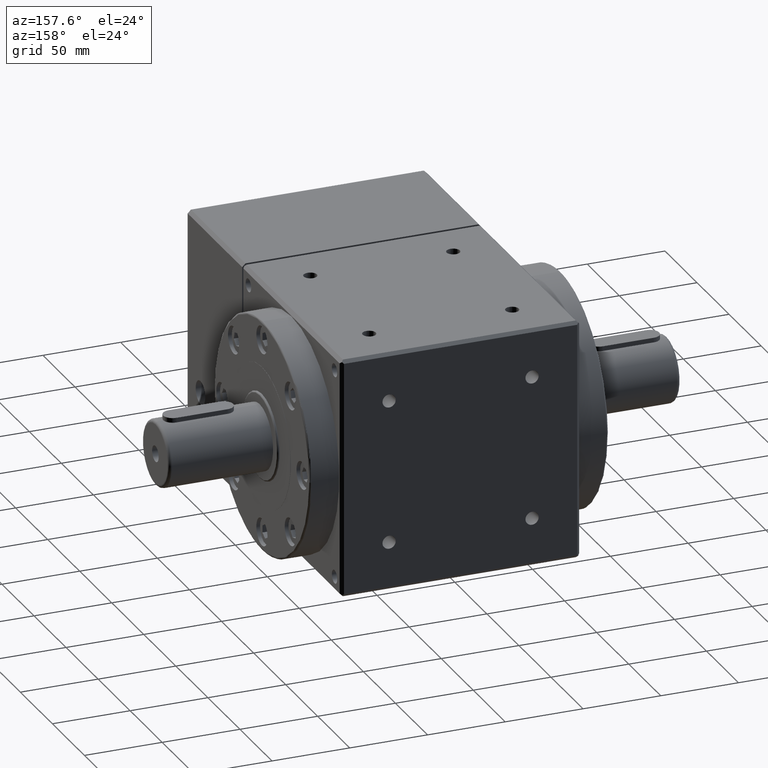
[diagram: clean part render]
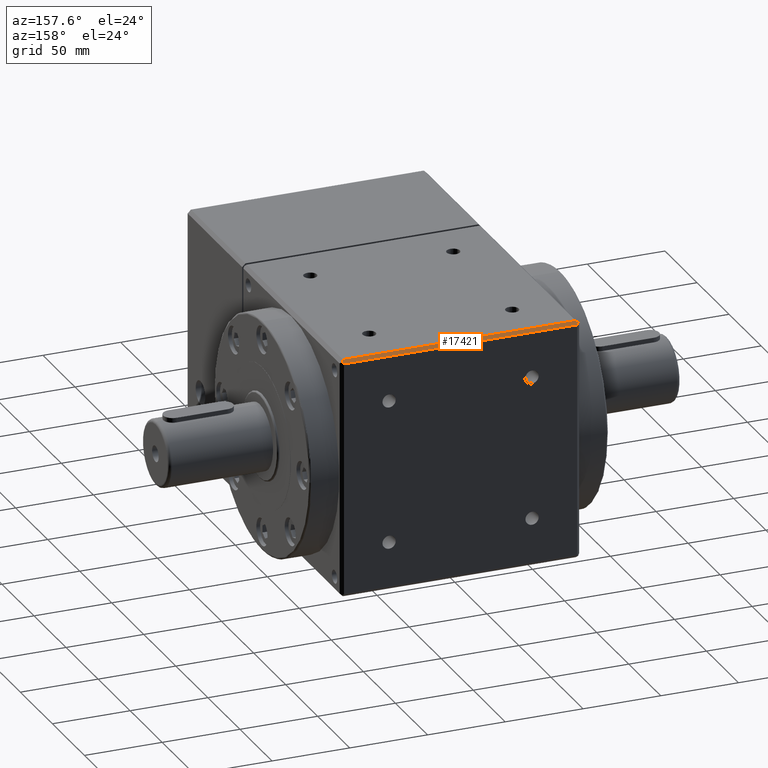
[diagram: same view with one face highlighted and labeled with its STEP entity id]
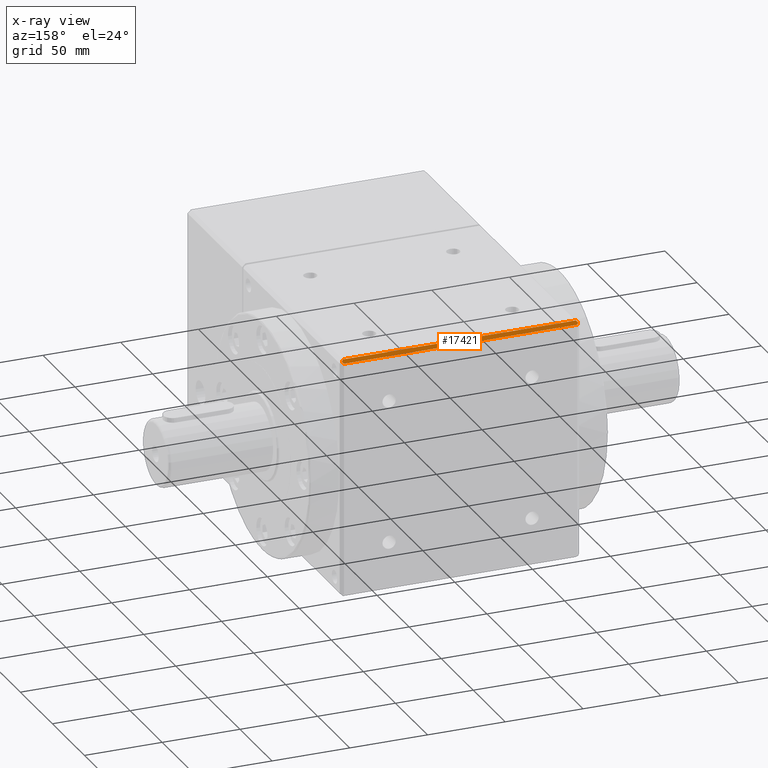
[diagram: x-ray of the same camera — body ghosted, the highlighted face saturated]
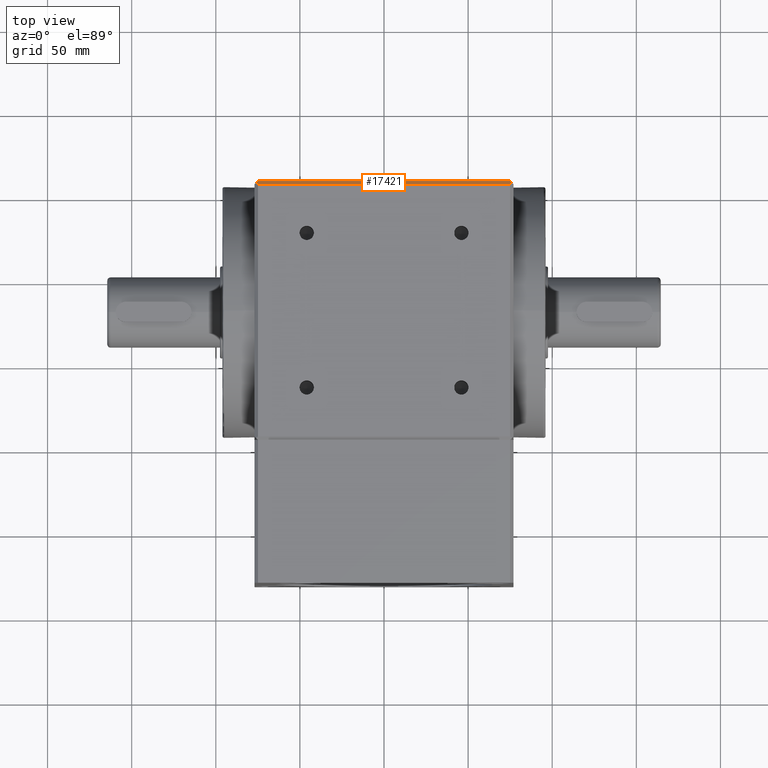
[diagram: same view with one face highlighted and labeled with its STEP entity id]
A machine part, auxiliary view. The second image highlights one B-rep face of the part: STEP entity #17421.
The next image is the same camera in x-ray: the body ghosted, the highlighted face saturated — about 0% of this face is hidden behind the body in this view.
A second angle (top view) of the same face is appended — the face is thin or edge-on in the first view.
In plain terms, the highlighted planar face has unit normal (0, 0.7071, 0.7071).
Its self-contained STEP definition (entity closure, byte-faithful):
#718 = DIRECTION ( 'NONE',  ( 0.5773502691896144100, 0.5773502691896144100, -0.5773502691896483800 ) ) ;
#1001 = CARTESIAN_POINT ( 'NONE',  ( 75.94326829943523200, 358.0567317005647400, 75.94326829943533100 ) ) ;
#1088 = CARTESIAN_POINT ( 'NONE',  ( -75.00000000000005700, 359.0000000000000000, 75.00000000000012800 ) ) ;
#1122 = CARTESIAN_POINT ( 'NONE',  ( 75.23130651558081200, 357.3497409619676000, 76.65025903803243100 ) ) ;
#1425 = VERTEX_POINT ( 'NONE', #14806 ) ;
#1822 = VERTEX_POINT ( 'NONE', #1088 ) ;
#2024 = VECTOR ( 'NONE', #15757, 1000.000000000000000 ) ;
#2180 = DIRECTION ( 'NONE',  ( 0.5773502691896313900, -0.5773502691896313900, 0.5773502691896145200 ) ) ;
#2727 = CARTESIAN_POINT ( 'NONE',  ( 75.94326829943523200, 358.0567317005647400, 75.94326829943533100 ) ) ;
#2735 = CARTESIAN_POINT ( 'NONE',  ( -95.00000000000008500, 357.0000000000000000, 77.00000000000004300 ) ) ;
#2918 = ORIENTED_EDGE ( 'NONE', *, *, #19456, .F. ) ;
#3228 = CARTESIAN_POINT ( 'NONE',  ( -74.87162346309848700, 357.0000000000000000, 77.00000000000004300 ) ) ;
#3372 = ORIENTED_EDGE ( 'NONE', *, *, #19066, .F. ) ;
#4105 = VERTEX_POINT ( 'NONE', #7655 ) ;
#4369 = DIRECTION ( 'NONE',  ( 0.0000000000000000000, -0.7071067811865474600, 0.7071067811865474600 ) ) ;
#4762 = CARTESIAN_POINT ( 'NONE',  ( -75.58852146102883300, 357.7019848621584400, 76.29801513784160200 ) ) ;
#5461 = CARTESIAN_POINT ( 'NONE',  ( -75.94326829943517500, 358.0567317005648500, 75.94326829943528900 ) ) ;
#6106 = CARTESIAN_POINT ( 'NONE',  ( -95.00000000000008500, 357.0000000000000000, 77.00000000000004300 ) ) ;
#6982 = VECTOR ( 'NONE', #2180, 1000.000000000000100 ) ;
#7292 = B_SPLINE_CURVE_WITH_KNOTS ( 'NONE', 3,
 ( #10523, #1122, #12038, #2727 ),
 .UNSPECIFIED., .F., .F.,
 ( 4, 4 ),
 ( 0.0000000000000000000, 1.000000000000000000 ),
 .UNSPECIFIED. ) ;
#7497 = ORIENTED_EDGE ( 'NONE', *, *, #16136, .T. ) ;
#7547 = VERTEX_POINT ( 'NONE', #1001 ) ;
#7655 = CARTESIAN_POINT ( 'NONE',  ( -75.94326829943517500, 358.0567317005648500, 75.94326829943523200 ) ) ;
#8103 = CARTESIAN_POINT ( 'NONE',  ( 0.0000000000000000000, 359.0000000000000000, 75.00000000000004300 ) ) ;
#8231 = ORIENTED_EDGE ( 'NONE', *, *, #15089, .T. ) ;
#9652 = ORIENTED_EDGE ( 'NONE', *, *, #17568, .T. ) ;
#10523 = CARTESIAN_POINT ( 'NONE',  ( 74.87162346309854400, 357.0000000000000000, 77.00000000000000000 ) ) ;
#10997 = FACE_OUTER_BOUND ( 'NONE', #16644, .T. ) ;
#11455 = CARTESIAN_POINT ( 'NONE',  ( 74.99999999999995700, 359.0000000000000000, 75.00000000000015600 ) ) ;
#11982 = PLANE ( 'NONE',  #17632 ) ;
#12038 = CARTESIAN_POINT ( 'NONE',  ( 75.58852146102636000, 357.7019848621558800, 76.29801513784417500 ) ) ;
#12056 = VERTEX_POINT ( 'NONE', #16974 ) ;
#12245 = LINE ( 'NONE', #6106, #19444 ) ;
#12515 = CARTESIAN_POINT ( 'NONE',  ( -75.23130651558328500, 357.3497409619701600, 76.65025903802988700 ) ) ;
#13564 = DIRECTION ( 'NONE',  ( 1.065434301178566000E-032, 0.7071067811865475700, 0.7071067811865475700 ) ) ;
#14016 = B_SPLINE_CURVE_WITH_KNOTS ( 'NONE', 3,
 ( #15556, #4762, #12515, #3228 ),
 .UNSPECIFIED., .F., .F.,
 ( 4, 4 ),
 ( 0.0000000000000000000, 1.000000000000000000 ),
 .UNSPECIFIED. ) ;
#14155 = VECTOR ( 'NONE', #718, 1000.000000000000200 ) ;
#14244 = VERTEX_POINT ( 'NONE', #19612 ) ;
#14806 = CARTESIAN_POINT ( 'NONE',  ( 74.99999999999997200, 359.0000000000000000, 75.00000000000007100 ) ) ;
#15089 = EDGE_CURVE ( 'NONE', #12056, #14244, #12245, .T. ) ;
#15135 = LINE ( 'NONE', #11455, #6982 ) ;
#15330 = DIRECTION ( 'NONE',  ( 1.000000000000000000, -7.533758192721145400E-033, -7.533758192721145400E-033 ) ) ;
#15556 = CARTESIAN_POINT ( 'NONE',  ( -75.94326829943517500, 358.0567317005648500, 75.94326829943523200 ) ) ;
#15757 = DIRECTION ( 'NONE',  ( 1.000000000000000000, 0.0000000000000000000, -0.0000000000000000000 ) ) ;
#16136 = EDGE_CURVE ( 'NONE', #14244, #7547, #7292, .T. ) ;
#16644 = EDGE_LOOP ( 'NONE', ( #3372, #9652, #8231, #7497, #2918, #16699 ) ) ;
#16699 = ORIENTED_EDGE ( 'NONE', *, *, #19353, .F. ) ;
#16974 = CARTESIAN_POINT ( 'NONE',  ( -74.87162346309848700, 357.0000000000000000, 77.00000000000004300 ) ) ;
#17421 = ADVANCED_FACE ( 'NONE', ( #10997 ), #11982, .T. ) ;
#17568 = EDGE_CURVE ( 'NONE', #4105, #12056, #14016, .T. ) ;
#17632 = AXIS2_PLACEMENT_3D ( 'NONE', #2735, #13564, #4369 ) ;
#18306 = LINE ( 'NONE', #5461, #14155 ) ;
#18542 = LINE ( 'NONE', #8103, #2024 ) ;
#19066 = EDGE_CURVE ( 'NONE', #4105, #1822, #18306, .T. ) ;
#19353 = EDGE_CURVE ( 'NONE', #1822, #1425, #18542, .T. ) ;
#19444 = VECTOR ( 'NONE', #15330, 1000.000000000000000 ) ;
#19456 = EDGE_CURVE ( 'NONE', #1425, #7547, #15135, .T. ) ;
#19612 = CARTESIAN_POINT ( 'NONE',  ( 74.87162346309854400, 357.0000000000000000, 77.00000000000000000 ) ) ;